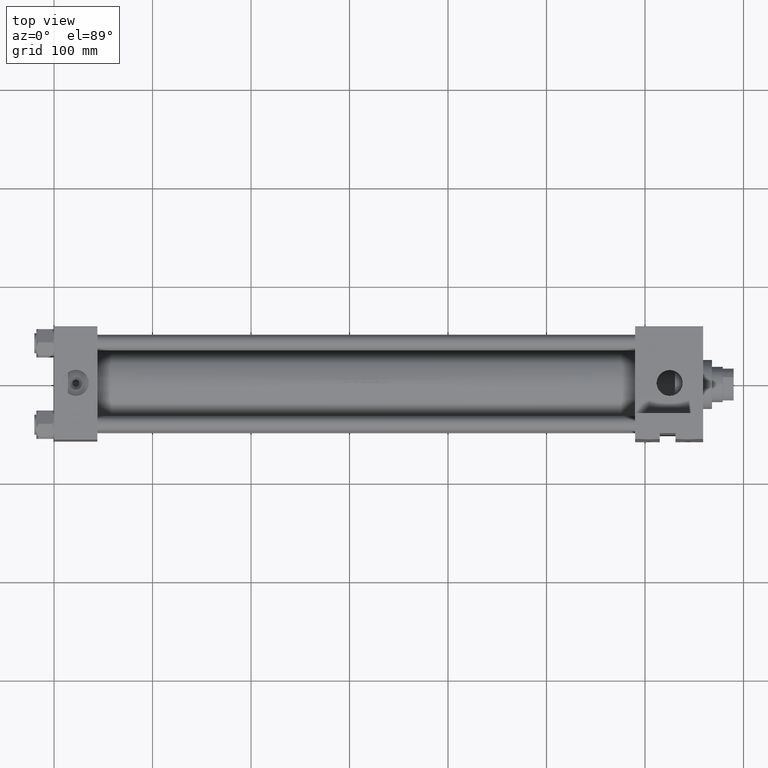
[diagram: clean part render]
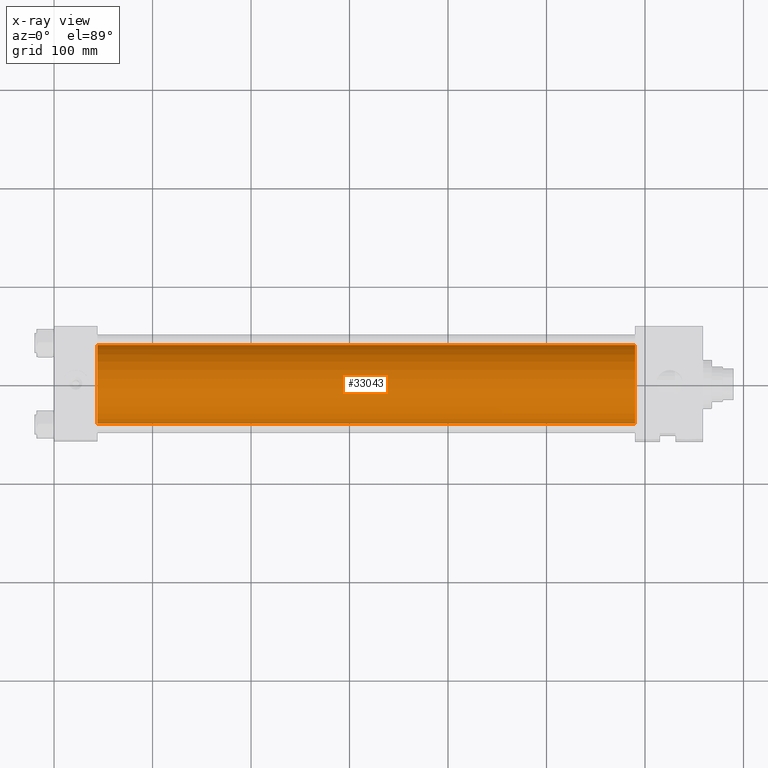
[diagram: x-ray — body ghosted, one internal face saturated and labeled with its STEP entity id]
A machine part, top view, then the same camera in x-ray: the body is ghosted and one INTERNAL B-rep face — a face not visible from any outside direction — is saturated and labeled: STEP entity #33043.
In plain terms, the highlighted cylindrical surface (partial cylindrical patch) has radius 40 mm, axis along (-1, -0, 0).
Its self-contained STEP definition (entity closure, byte-faithful):
#657 = DIRECTION ( 'NONE',  ( 0.000000000000000000, 0.000000000000000000, 1.000000000000000000 ) ) ;
#926 = ORIENTED_EDGE ( 'NONE', *, *, #36464, .T. ) ;
#1140 = CARTESIAN_POINT ( 'NONE',  ( 590.0000000000001137, 6.123233995736685917E-17, -0.4999999999999935052 ) ) ;
#1626 = ORIENTED_EDGE ( 'NONE', *, *, #26369, .F. ) ;
#2217 = DIRECTION ( 'NONE',  ( -1.000000000000000000, -0.000000000000000000, -0.000000000000000000 ) ) ;
#4685 = LINE ( 'NONE', #20475, #45865 ) ;
#6815 = CIRCLE ( 'NONE', #9146, 40.00000000000000000 ) ;
#7979 = FACE_OUTER_BOUND ( 'NONE', #39327, .T. ) ;
#8517 = EDGE_CURVE ( 'NONE', #22239, #30263, #26901, .T. ) ;
#9146 = AXIS2_PLACEMENT_3D ( 'NONE', #47474, #36524, #38793 ) ;
#10957 = EDGE_CURVE ( 'NONE', #22239, #41665, #20234, .T. ) ;
#15036 = CYLINDRICAL_SURFACE ( 'NONE', #27130, 40.00000000000000000 ) ;
#16355 = DIRECTION ( 'NONE',  ( -1.000000000000000000, -0.000000000000000000, -0.000000000000000000 ) ) ;
#16755 = DIRECTION ( 'NONE',  ( 0.000000000000000000, 0.000000000000000000, -1.000000000000000000 ) ) ;
#17858 = CARTESIAN_POINT ( 'NONE',  ( 590.0000000000001137, 6.123233995736685917E-17, 39.50000000000000711 ) ) ;
#18853 = VECTOR ( 'NONE', #2217, 1000.000000000000000 ) ;
#20234 = LINE ( 'NONE', #20952, #18853 ) ;
#20475 = CARTESIAN_POINT ( 'NONE',  ( 590.0000000000001137, 4.959819536546779811E-15, -40.49999999999999289 ) ) ;
#20952 = CARTESIAN_POINT ( 'NONE',  ( 590.0000000000001137, 6.123233995736685917E-17, 39.50000000000000711 ) ) ;
#22239 = VERTEX_POINT ( 'NONE', #17858 ) ;
#23587 = CARTESIAN_POINT ( 'NONE',  ( 590.0000000000001137, 6.123233995736685917E-17, -0.4999999999999935052 ) ) ;
#23659 = ORIENTED_EDGE ( 'NONE', *, *, #10957, .F. ) ;
#23741 = CARTESIAN_POINT ( 'NONE',  ( 44.00000000000000000, 6.123233995736685917E-17, 39.50000000000000711 ) ) ;
#25451 = VERTEX_POINT ( 'NONE', #31424 ) ;
#26369 = EDGE_CURVE ( 'NONE', #41665, #25451, #6815, .T. ) ;
#26466 = DIRECTION ( 'NONE',  ( -1.000000000000000000, -0.000000000000000000, -0.000000000000000000 ) ) ;
#26901 = CIRCLE ( 'NONE', #32282, 40.00000000000000000 ) ;
#27130 = AXIS2_PLACEMENT_3D ( 'NONE', #1140, #26466, #657 ) ;
#27738 = ORIENTED_EDGE ( 'NONE', *, *, #8517, .T. ) ;
#30251 = CARTESIAN_POINT ( 'NONE',  ( 590.0000000000001137, 4.959819536546779811E-15, -40.49999999999999289 ) ) ;
#30263 = VERTEX_POINT ( 'NONE', #30251 ) ;
#31424 = CARTESIAN_POINT ( 'NONE',  ( 44.00000000000000000, 4.959819536546779811E-15, -40.49999999999999289 ) ) ;
#32282 = AXIS2_PLACEMENT_3D ( 'NONE', #23587, #38401, #16755 ) ;
#33043 = ADVANCED_FACE ( 'NONE', ( #7979 ), #15036, .F. ) ;
#36464 = EDGE_CURVE ( 'NONE', #30263, #25451, #4685, .T. ) ;
#36524 = DIRECTION ( 'NONE',  ( 1.000000000000000000, 0.000000000000000000, 0.000000000000000000 ) ) ;
#38401 = DIRECTION ( 'NONE',  ( 1.000000000000000000, 0.000000000000000000, 0.000000000000000000 ) ) ;
#38793 = DIRECTION ( 'NONE',  ( 0.000000000000000000, 0.000000000000000000, -1.000000000000000000 ) ) ;
#39327 = EDGE_LOOP ( 'NONE', ( #27738, #926, #1626, #23659 ) ) ;
#41665 = VERTEX_POINT ( 'NONE', #23741 ) ;
#45865 = VECTOR ( 'NONE', #16355, 1000.000000000000000 ) ;
#47474 = CARTESIAN_POINT ( 'NONE',  ( 44.00000000000000000, 6.123233995736685917E-17, -0.4999999999999935052 ) ) ;